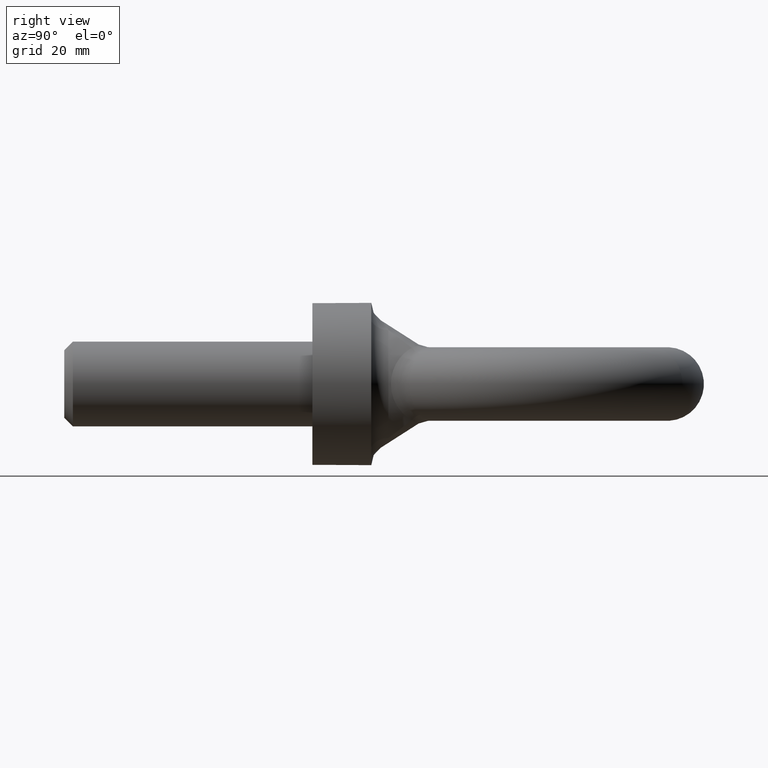
[diagram: clean part render]
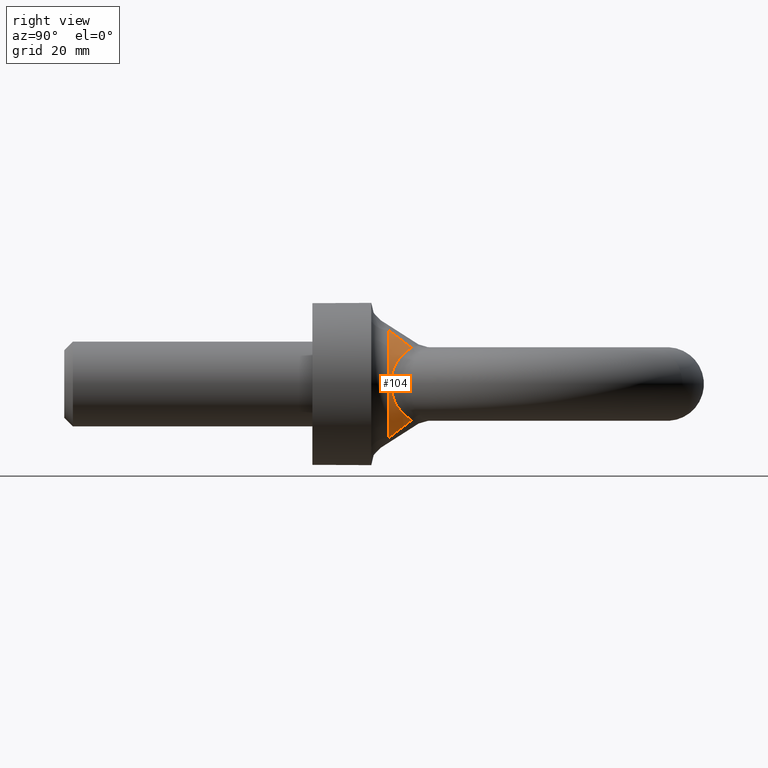
[diagram: same view with one face highlighted and labeled with its STEP entity id]
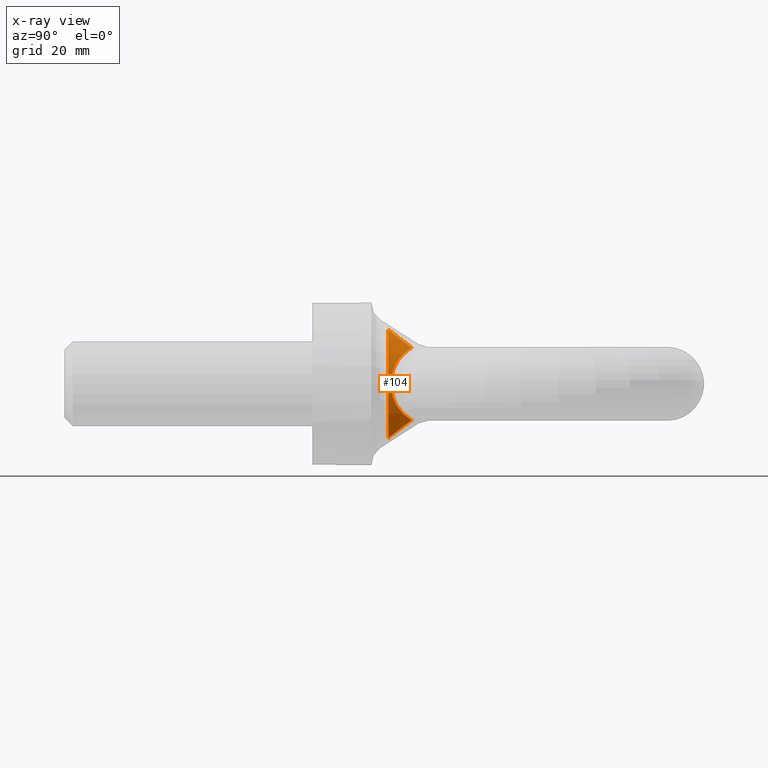
[diagram: x-ray of the same camera — body ghosted, the highlighted face saturated]
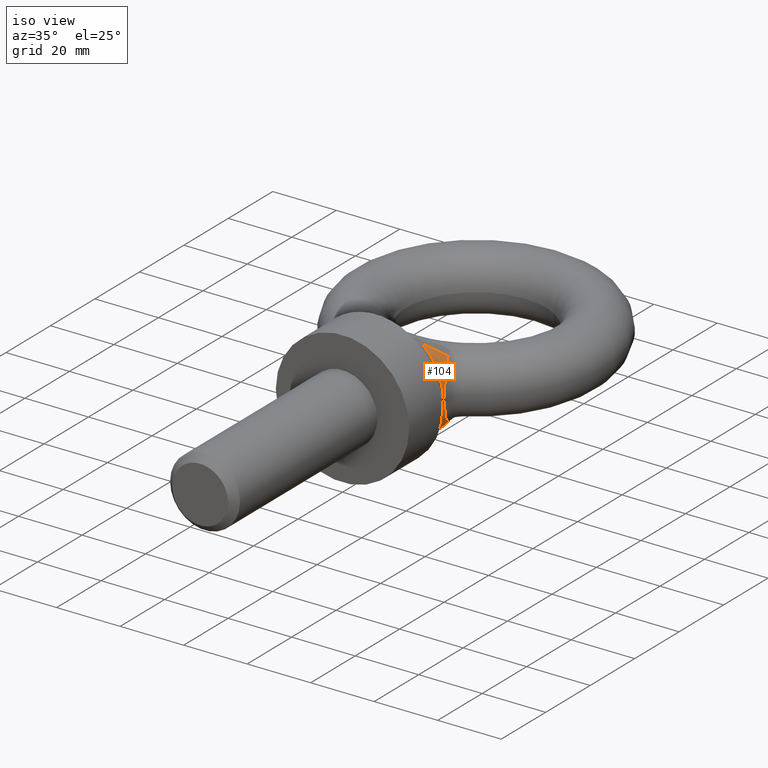
[diagram: same view with one face highlighted and labeled with its STEP entity id]
A machine part, right view. The second image highlights one B-rep face of the part: STEP entity #104.
The next image is the same camera in x-ray: the body ghosted, the highlighted face saturated — about 0% of this face is hidden behind the body in this view.
A second angle (iso view) of the same face is appended — the face is thin or edge-on in the first view.
In plain terms, the highlighted cylindrical surface (partial cylindrical patch) has radius 18 mm, axis along (-0, 1, 0).
Its self-contained STEP definition (entity closure, byte-faithful):
#104=ADVANCED_FACE('',(#138),#134,.T.);
#134=CYLINDRICAL_SURFACE('',#478,18.);
#138=FACE_OUTER_BOUND('',#164,.T.);
#164=EDGE_LOOP('',(#250,#251,#252,#253));
#198=B_SPLINE_CURVE_WITH_KNOTS('',3,(#635,#636,#637,#638,#639,#640,#641,
#642,#643,#644),.UNSPECIFIED.,.F.,.F.,(4,2,2,2,4),(0.,0.25,0.5,0.75,1.),
 .UNSPECIFIED.);
#220=CIRCLE('',#476,18.);
#250=ORIENTED_EDGE('',*,*,#406,.T.);
#251=ORIENTED_EDGE('',*,*,#407,.T.);
#252=ORIENTED_EDGE('',*,*,#408,.T.);
#253=ORIENTED_EDGE('',*,*,#409,.T.);
#370=VERTEX_POINT('',#629);
#371=VERTEX_POINT('',#630);
#372=VERTEX_POINT('',#632);
#373=VERTEX_POINT('',#634);
#406=EDGE_CURVE('',#370,#371,#466,.T.);
#407=EDGE_CURVE('',#371,#372,#220,.T.);
#408=EDGE_CURVE('',#372,#373,#467,.T.);
#409=EDGE_CURVE('',#373,#370,#198,.T.);
#466=ELLIPSE('',#475,29.5781762810138,18.);
#467=ELLIPSE('',#477,29.5781762810138,18.);
#475=AXIS2_PLACEMENT_3D('',#628,#527,#528);
#476=AXIS2_PLACEMENT_3D('',#631,#529,#530);
#477=AXIS2_PLACEMENT_3D('',#633,#531,#532);
#478=AXIS2_PLACEMENT_3D('',#645,#533,#534);
#527=DIRECTION('',(3.01117253526179E-19,-0.608556789606876,-0.793510323703083));
#528=DIRECTION('',(-3.51045983445226E-18,0.793510323703083,-0.608556789606877));
#529=DIRECTION('',(-2.96883306868402E-18,1.,0.));
#530=DIRECTION('',(1.,0.,0.));
#531=DIRECTION('',(3.01117253526179E-19,-0.608556789606876,0.793510323703083));
#532=DIRECTION('',(-3.51045983445226E-18,0.793510323703083,0.608556789606877));
#533=DIRECTION('',(-2.96883306868402E-18,1.,0.));
#534=DIRECTION('',(-1.,0.,0.));
#628=CARTESIAN_POINT('',(-2.75918078856623E-17,37.7938226054902,0.));
#629=CARTESIAN_POINT('',(15.3826310353096,25.6054920336228,9.34744149120657));
#630=CARTESIAN_POINT('',(11.386357039117,19.6158804331639,13.940978207348));
#631=CARTESIAN_POINT('',(2.63754679561657E-17,19.6158804331639,0.));
#632=CARTESIAN_POINT('',(11.386357039117,19.6158804331639,-13.940978207348));
#633=CARTESIAN_POINT('',(-2.75918078856623E-17,37.7938226054902,0.));
#634=CARTESIAN_POINT('',(15.3826310353096,25.6054920336228,-9.34744149120657));
#635=CARTESIAN_POINT('',(15.3826310353096,25.6054920336228,-9.34744149120656));
#636=CARTESIAN_POINT('',(15.9552151287157,23.9865432153175,-8.40516762366341));
#637=CARTESIAN_POINT('',(16.6300938755648,22.6464815340527,-7.09198878667958));
#638=CARTESIAN_POINT('',(17.659573052671,20.7807127812104,-3.8724419760485));
#639=CARTESIAN_POINT('',(17.9995026794357,20.2603556365017,-1.96282126395923));
#640=CARTESIAN_POINT('',(18.0004961623347,20.2587640281694,1.95368931282212));
#641=CARTESIAN_POINT('',(17.6599113556333,20.7802645422157,3.87030148242102));
#642=CARTESIAN_POINT('',(16.6318933470482,22.643055736347,7.08744145274369));
#643=CARTESIAN_POINT('',(15.955265896078,23.9863996735002,8.40508407827779));
#644=CARTESIAN_POINT('',(15.3826310353096,25.6054920336228,9.34744149120657));
#645=CARTESIAN_POINT('',(2.74617058853272E-16,-64.,0.));